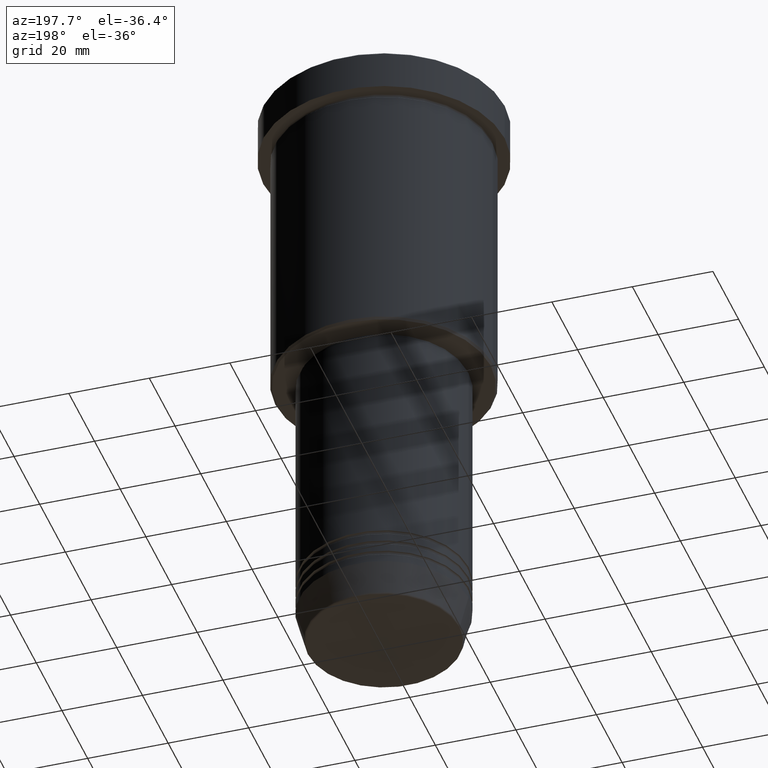
[diagram: clean part render]
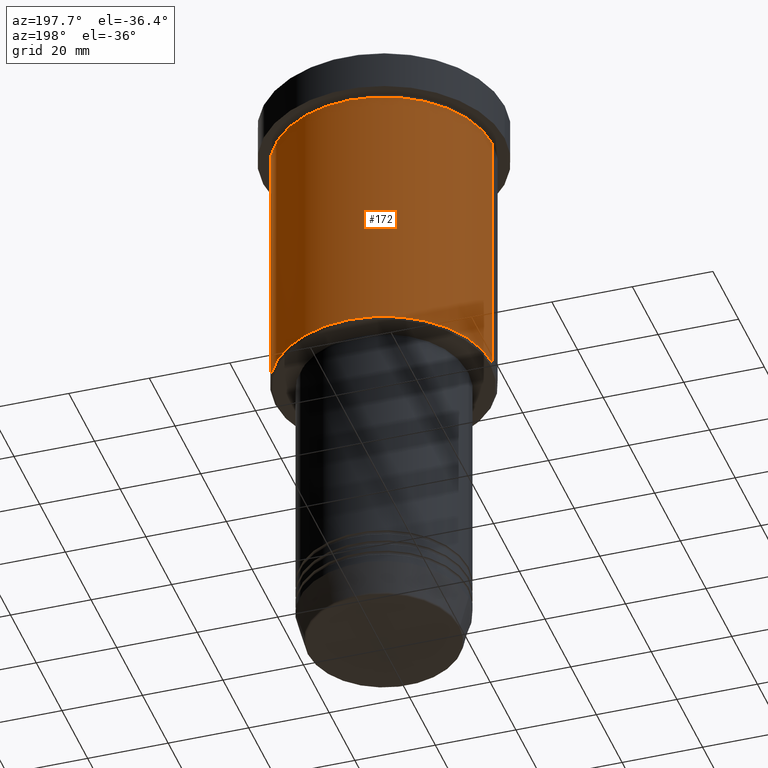
[diagram: same view with one face highlighted and labeled with its STEP entity id]
A machine part, auxiliary view. The second image highlights one B-rep face of the part: STEP entity #172.
In plain terms, the highlighted cylindrical surface (partial cylindrical patch) has radius 27 mm, axis along (-0, -0, 1).
Its self-contained STEP definition (entity closure, byte-faithful):
#4 = VECTOR ( 'NONE', #1135, 1000.000000000000000 ) ;
#10 = VERTEX_POINT ( 'NONE', #1145 ) ;
#34 = LINE ( 'NONE', #768, #496 ) ;
#40 = CARTESIAN_POINT ( 'NONE',  ( 0.000000000000000000, 0.000000000000000000, -75.50000000000000000 ) ) ;
#55 = CIRCLE ( 'NONE', #424, 27.00000000000000355 ) ;
#95 = EDGE_CURVE ( 'NONE', #10, #903, #310, .T. ) ;
#97 = ORIENTED_EDGE ( 'NONE', *, *, #1055, .F. ) ;
#141 = VERTEX_POINT ( 'NONE', #719 ) ;
#172 = ADVANCED_FACE ( 'NONE', ( #632 ), #705, .T. ) ;
#206 = ORIENTED_EDGE ( 'NONE', *, *, #1096, .T. ) ;
#225 = CARTESIAN_POINT ( 'NONE',  ( -27.00000000000000355, 3.306546357697854128E-15, 0.000000000000000000 ) ) ;
#268 = CARTESIAN_POINT ( 'NONE',  ( 0.000000000000000000, 0.000000000000000000, -10.99999999999999289 ) ) ;
#292 = CIRCLE ( 'NONE', #831, 27.00000000000000355 ) ;
#307 = EDGE_LOOP ( 'NONE', ( #206, #1101, #608, #97 ) ) ;
#310 = LINE ( 'NONE', #225, #4 ) ;
#354 = VERTEX_POINT ( 'NONE', #827 ) ;
#424 = AXIS2_PLACEMENT_3D ( 'NONE', #268, #1182, #554 ) ;
#496 = VECTOR ( 'NONE', #1120, 1000.000000000000000 ) ;
#551 = EDGE_CURVE ( 'NONE', #354, #903, #55, .T. ) ;
#554 = DIRECTION ( 'NONE',  ( 1.000000000000000000, 0.000000000000000000, 0.000000000000000000 ) ) ;
#608 = ORIENTED_EDGE ( 'NONE', *, *, #551, .F. ) ;
#632 = FACE_OUTER_BOUND ( 'NONE', #307, .T. ) ;
#705 = CYLINDRICAL_SURFACE ( 'NONE', #1089, 27.00000000000000355 ) ;
#719 = CARTESIAN_POINT ( 'NONE',  ( 27.00000000000000355, 0.000000000000000000, -75.50000000000000000 ) ) ;
#768 = CARTESIAN_POINT ( 'NONE',  ( 27.00000000000000355, 0.000000000000000000, 0.000000000000000000 ) ) ;
#827 = CARTESIAN_POINT ( 'NONE',  ( 27.00000000000000355, 0.000000000000000000, -10.99999999999999289 ) ) ;
#831 = AXIS2_PLACEMENT_3D ( 'NONE', #40, #879, #980 ) ;
#879 = DIRECTION ( 'NONE',  ( -0.000000000000000000, -0.000000000000000000, 1.000000000000000000 ) ) ;
#903 = VERTEX_POINT ( 'NONE', #1104 ) ;
#968 = DIRECTION ( 'NONE',  ( 1.000000000000000000, 0.000000000000000000, 0.000000000000000000 ) ) ;
#980 = DIRECTION ( 'NONE',  ( -1.000000000000000000, 0.000000000000000000, 0.000000000000000000 ) ) ;
#1053 = DIRECTION ( 'NONE',  ( -0.000000000000000000, -0.000000000000000000, 1.000000000000000000 ) ) ;
#1055 = EDGE_CURVE ( 'NONE', #141, #354, #34, .T. ) ;
#1089 = AXIS2_PLACEMENT_3D ( 'NONE', #1150, #1053, #968 ) ;
#1096 = EDGE_CURVE ( 'NONE', #141, #10, #292, .T. ) ;
#1101 = ORIENTED_EDGE ( 'NONE', *, *, #95, .T. ) ;
#1104 = CARTESIAN_POINT ( 'NONE',  ( -27.00000000000000355, 3.306546357697854128E-15, -10.99999999999999289 ) ) ;
#1120 = DIRECTION ( 'NONE',  ( -0.000000000000000000, -0.000000000000000000, 1.000000000000000000 ) ) ;
#1135 = DIRECTION ( 'NONE',  ( -0.000000000000000000, -0.000000000000000000, 1.000000000000000000 ) ) ;
#1145 = CARTESIAN_POINT ( 'NONE',  ( -27.00000000000000355, 3.306546357697854128E-15, -75.50000000000000000 ) ) ;
#1150 = CARTESIAN_POINT ( 'NONE',  ( 0.000000000000000000, 0.000000000000000000, 0.000000000000000000 ) ) ;
#1182 = DIRECTION ( 'NONE',  ( -0.000000000000000000, -0.000000000000000000, 1.000000000000000000 ) ) ;